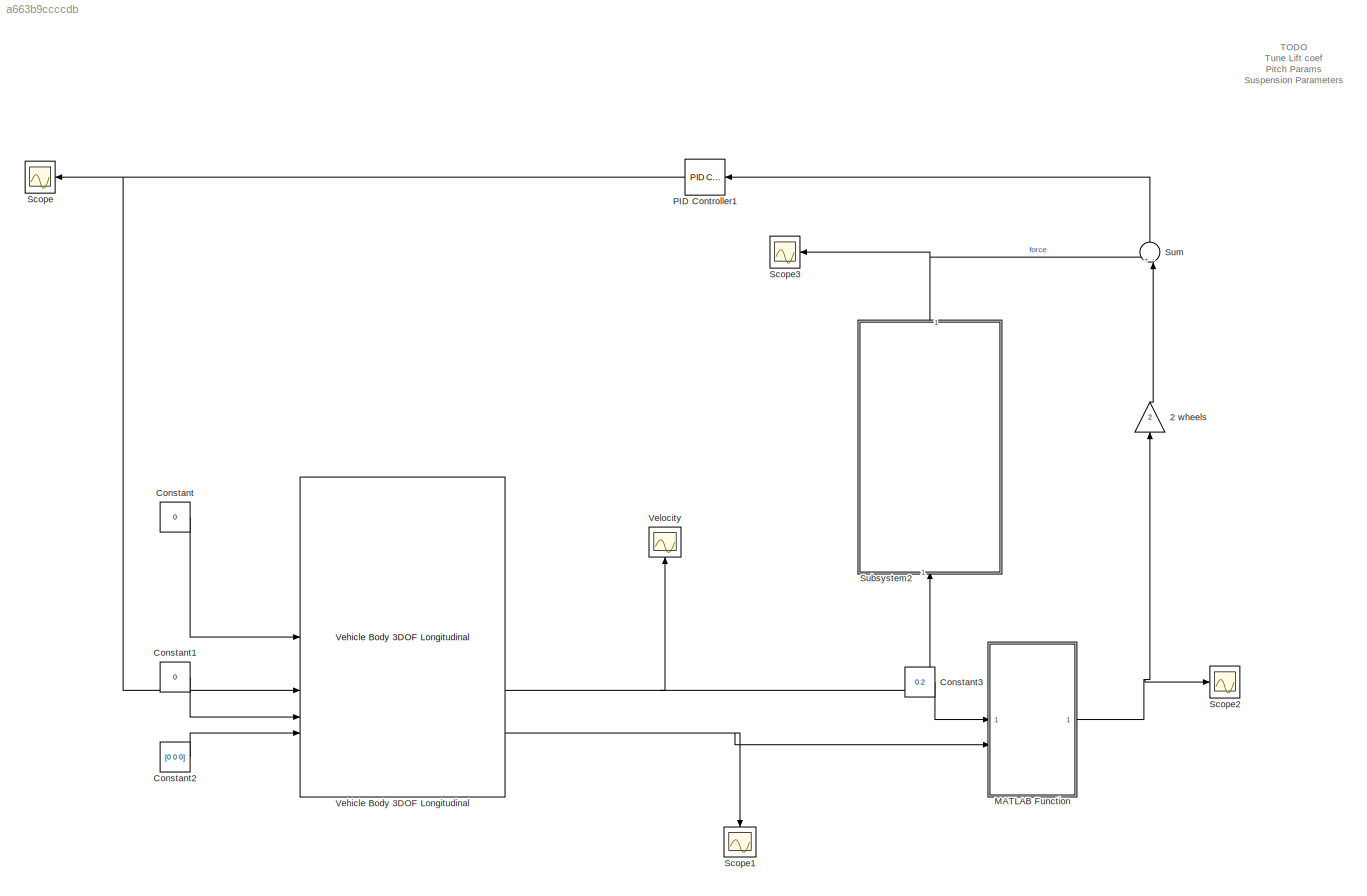
MODEL slx_a663b9ccccdb
KIND model
CONFIG AbsTol = auto
CONFIG EnableMultiTasking = off
CONFIG FixedStep = auto
CONFIG MaxStep = auto
CONFIG MinStep = auto
CONFIG RelTol = 1e-3
CONFIG SampleTimeConstraint = Unconstrained
CONFIG SolverName = VariableStepAuto
CONFIG StartTime = 0.0
CONFIG StopTime = 0.01
BLOCK [Gain] 2 wheels
  Gain = 2
  NameLocation = right
BLOCK [Constant] Constant
  Value = 0
BLOCK [Constant] Constant1
  Value = 0
BLOCK [Constant] Constant2
  Value = [0 0 0]
BLOCK [Constant] Constant3
  Value = 0.2
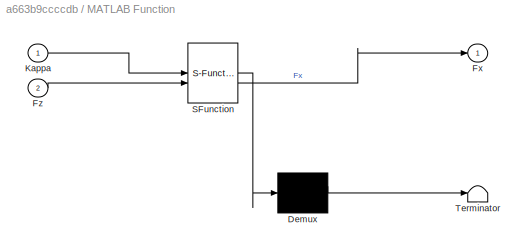
BLOCK [SubSystem] MATLAB Function
  ErrorFcn = Stateflow.Translate.translate
  PermitHierarchicalResolution = ExplicitOnly
  SFBlockType = MATLAB Function
  TreatAsAtomicUnit = on
BLOCK [Demux] MATLAB Function/ Demux 
  Outputs = 1
BLOCK [S-Function] MATLAB Function/ SFunction 
  EnableBusSupport = on
  FunctionName = sf_sfun
  Parameters = Parameter
  PortCounts = [2 2]
  SFcnIsStateOwnerBlock = off
  SFunctionDeploymentMode = off
  Tag = Stateflow S-Function 2
BLOCK [Terminator] MATLAB Function/ Terminator 
BLOCK [Outport] MATLAB Function/Fx
BLOCK [Inport] MATLAB Function/Fz
  Port = 2
BLOCK [Inport] MATLAB Function/Kappa
BLOCK [Reference] PID Controller1  REF=slpidlib/PID Controller
  LibrarySourceBlock = simulink/Continuous/PID Controller
  NameLocation = top
  SourceBlock = slpidlib/PID Controller
  SourceType = PID 1dof
BLOCK [Scope] Scope
  Floating = off
  NameLocation = top
  NumInputPorts = 1
  ScopeSpecificationString = Simulink.scopes.TimeScopeBlockCfg('CurrentConfiguration', extmgr.ConfigurationSet(extmgr.Configuration('Core','General UI',true),extmgr.Configuration('Core','Source UI',true),extmgr.Configuration('Sources','WiredSimulink',true),extmgr.Configuration('Visuals','Time Domain',true,'SerializedDisplays',{struct('MinYLimReal','-345009975945212.625','MaxYLimReal','4076121700643933.00000','YLabelReal','','...<+1649ch>
BLOCK [Scope] Scope1
  Floating = off
  NameLocation = left
  NumInputPorts = 1
  ScopeSpecificationString = Simulink.scopes.TimeScopeBlockCfg('CurrentConfiguration', extmgr.ConfigurationSet(extmgr.Configuration('Core','General UI',true),extmgr.Configuration('Core','Source UI',true),extmgr.Configuration('Sources','WiredSimulink',true,'DataLoggingVariableName','ScopeData4'),extmgr.Configuration('Visuals','Time Domain',true,'SerializedDisplays',{struct('MinYLimReal','-25267665.37248','MaxYLimReal','7451172...<+1587ch>
BLOCK [Scope] Scope2
  Floating = off
  NumInputPorts = 1
  ScopeSpecificationString = Simulink.scopes.TimeScopeBlockCfg('CurrentConfiguration', extmgr.ConfigurationSet(extmgr.Configuration('Core','General UI',true),extmgr.Configuration('Core','Source UI',true),extmgr.Configuration('Sources','WiredSimulink',true,'DataLoggingVariableName','ScopeData2'),extmgr.Configuration('Visuals','Time Domain',true,'SerializedDisplays',{struct('MinYLimReal','-5884630215653.46191','MaxYLimReal','65...<+1620ch>
BLOCK [Scope] Scope3
  Floating = off
  NameLocation = top
  NumInputPorts = 1
  ScopeSpecificationString = Simulink.scopes.TimeScopeBlockCfg('CurrentConfiguration', extmgr.ConfigurationSet(extmgr.Configuration('Core','General UI',true),extmgr.Configuration('Core','Source UI',true),extmgr.Configuration('Sources','WiredSimulink',true,'DataLoggingVariableName','ScopeData3'),extmgr.Configuration('Visuals','Time Domain',true,'SerializedDisplays',{struct('MinYLimReal','-216.53543','MaxYLimReal','1948.8189','...<+1502ch>
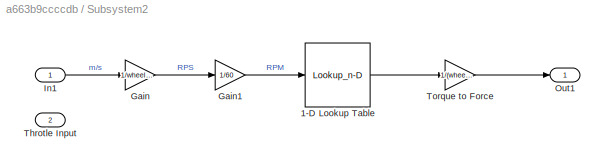
BLOCK [SubSystem] Subsystem2
  NameLocation = right
BLOCK [Lookup_n-D] Subsystem2/1-D Lookup Table
  BreakpointsForDimension1 = torque_vs_RPM_breakpoints
  ExtrapMethod = Clip
  InputPortMap = u0
  InternalRulePriority = Speed
  NumberOfTableDimensions = 1
  RndMeth = Simplest
  Table = torque_vs_RPM_table
  UseLastTableValue = on
BLOCK [Gain] Subsystem2/Gain
  Gain = 1/wheel.circumfrence
BLOCK [Gain] Subsystem2/Gain1
  Gain = 1/60
BLOCK [Inport] Subsystem2/In1
BLOCK [Outport] Subsystem2/Out1
BLOCK [Inport] Subsystem2/Throtle Input
  Port = 2
BLOCK [Gain] Subsystem2/Torque to Force
  Gain = 1/(wheel.diameter/2)
BLOCK [Sum] Sum
  Inputs = +-|
  NameLocation = right
BLOCK [Reference] Vehicle Body 3DOF Longitudinal  REF=autolibshared/Vehicle Body 3DOF Longitudinal
  LibrarySourceBlock = vehdynlibeom/Vehicle Body 3DOF Longitudinal
  SourceBlock = autolibshared/Vehicle Body 3DOF Longitudinal
  SourceType = Vehicle Body 3DOF Longitudinal
BLOCK [Scope] Velocity
  Floating = off
  NameLocation = right
  NumInputPorts = 1
  ScopeSpecificationString = Simulink.scopes.TimeScopeBlockCfg('CurrentConfiguration', extmgr.ConfigurationSet(extmgr.Configuration('Core','General UI',true),extmgr.Configuration('Core','Source UI',true),extmgr.Configuration('Sources','WiredSimulink',true,'DataLoggingVariableName','ScopeData1'),extmgr.Configuration('Visuals','Time Domain',true,'SerializedDisplays',{struct('MinYLimReal','-0.03114','MaxYLimReal','0.15774','YLab...<+1871ch>
ANNOTATION (root): TODO Tune Lift coef Pitch Params Suspension Parameters
LINE 2 wheels:1 -> Sum:2
LINE Constant1:1 -> Vehicle Body 3DOF Longitudinal:3
LINE Constant2:1 -> Vehicle Body 3DOF Longitudinal:4
LINE Constant3:1 -> MATLAB Function:1
LINE Constant:1 -> Vehicle Body 3DOF Longitudinal:1
NET MATLAB Function:1 -> 2 wheels:1, Scope2:1
NET PID Controller1:1 -> Scope:1, Vehicle Body 3DOF Longitudinal:2
LINE Subsystem2/1-D Lookup Table:1 -> Subsystem2/Torque to Force:1
LINE Subsystem2/Gain1:1 -> Subsystem2/1-D Lookup Table:1
LINE Subsystem2/Gain:1 -> Subsystem2/Gain1:1
LINE Subsystem2/In1:1 -> Subsystem2/Gain:1
LINE Subsystem2/Torque to Force:1 -> Subsystem2/Out1:1
NET Subsystem2:1 -> Scope3:1, Sum:1
LINE Sum:1 -> PID Controller1:1
NET Vehicle Body 3DOF Longitudinal:2 -> Subsystem2:1, Velocity:1
NET Vehicle Body 3DOF Longitudinal:4 -> MATLAB Function:2, Scope1:1
note: NET lines group one-source signal fan-out (src -> all destinations, sorted); 1:1 wires keep LINE
CHART MATLAB Function states=1 transitions=1
  STATE_LABEL 'eML_blk_kernel()'
  STATE_LABEL 'SCRIPT:\nfunction Fx = fcn(Kappa, Fz, Parameter)\nPi = 70;\nInc = 0;\n\ndFz = (Fz - Parameter.Pacejka.Fzo) ./ Parameter.Pacejka.Fzo;\ndPi = (Pi - Parameter.Pacejka.Pio) ./ Parameter.Pacejka.Pio;\n\nCx = Parameter.Pacejka.p.C.x(1) .* Parameter.Pacejka.L.C.x;\n\nDx = (Parameter.Pacejka.p.D.x(1) + Parameter.Pacejka.p.D.x(2).*dFz) .* ...\n     (1 + Parameter.Pacejka.p.P.x(3).*dPi + Parameter.Pacejka.p.P.x(4).*dP...<+897ch>'
CHART  states=0 transitions=0
